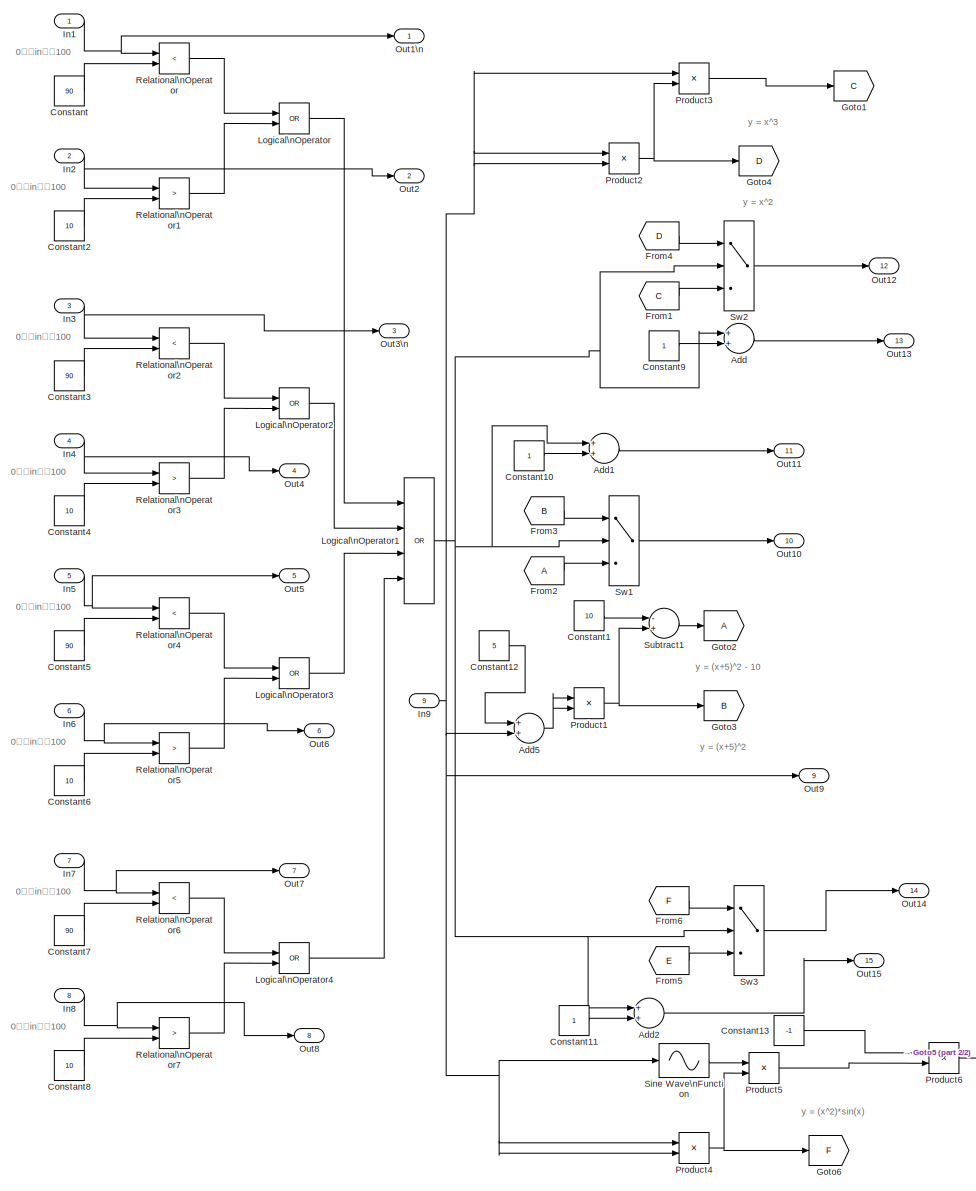
[diagram: root canvas - part 1/2, most of the canvas]
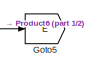
[diagram: root canvas - part 2/2, bottom right region]
MODEL toy_model_NO4
KIND model
BLOCK [Sum] Add
  InputSameDT = off
  OutDataTypeStr = Inherit: Inherit via internal rule
  Ports = [2, 1]
  SID = 97
  SaturateOnIntegerOverflow = off
BLOCK [Sum] Add1
  InputSameDT = off
  OutDataTypeStr = Inherit: Inherit via internal rule
  Ports = [2, 1]
  SID = 99
  SaturateOnIntegerOverflow = off
BLOCK [Sum] Add2
  InputSameDT = off
  OutDataTypeStr = Inherit: Inherit via internal rule
  Ports = [2, 1]
  SID = 101
  SaturateOnIntegerOverflow = off
BLOCK [Sum] Add5
  InputSameDT = off
  OutDataTypeStr = Inherit: Inherit via internal rule
  Ports = [2, 1]
  SID = 105
  SaturateOnIntegerOverflow = off
BLOCK [Constant] Constant
  SID = 10
  Value = 90
BLOCK [Constant] Constant1
  SID = 11
  Value = 10
BLOCK [Constant] Constant10
  SID = 100
BLOCK [Constant] Constant11
  SID = 102
BLOCK [Constant] Constant12
  SID = 106
  Value = 5
BLOCK [Constant] Constant13
  SID = 108
  Value = -1
BLOCK [Constant] Constant2
  SID = 12
  Value = 10
BLOCK [Constant] Constant3
  SID = 13
  Value = 90
BLOCK [Constant] Constant4
  SID = 14
  Value = 10
BLOCK [Constant] Constant5
  SID = 15
  Value = 90
BLOCK [Constant] Constant6
  SID = 16
  Value = 10
BLOCK [Constant] Constant7
  SID = 17
  Value = 90
BLOCK [Constant] Constant8
  SID = 18
  Value = 10
BLOCK [Constant] Constant9
  SID = 98
BLOCK [From] From1
  GotoTag = C
  SID = 59
BLOCK [From] From2
  SID = 19
BLOCK [From] From3
  GotoTag = B
  SID = 20
BLOCK [From] From4
  GotoTag = D
  SID = 60
BLOCK [From] From5
  GotoTag = E
  SID = 62
BLOCK [From] From6
  GotoTag = F
  SID = 63
BLOCK [Goto] Goto1
  GotoTag = C
  SID = 52
BLOCK [Goto] Goto2
  SID = 21
BLOCK [Goto] Goto3
  GotoTag = B
  SID = 22
BLOCK [Goto] Goto4
  GotoTag = D
  SID = 53
BLOCK [Goto] Goto5
  GotoTag = E
  SID = 64
BLOCK [Goto] Goto6
  GotoTag = F
  SID = 65
BLOCK [Inport] In1
  IconDisplay = Port number
  SID = 1
BLOCK [Inport] In2
  IconDisplay = Port number
  Port = 2
  SID = 2
BLOCK [Inport] In3
  IconDisplay = Port number
  Port = 3
  SID = 3
BLOCK [Inport] In4
  IconDisplay = Port number
  Port = 4
  SID = 4
BLOCK [Inport] In5
  IconDisplay = Port number
  Port = 5
  SID = 5
BLOCK [Inport] In6
  IconDisplay = Port number
  Port = 6
  SID = 6
BLOCK [Inport] In7
  IconDisplay = Port number
  Port = 7
  SID = 7
BLOCK [Inport] In8
  IconDisplay = Port number
  Port = 8
  SID = 8
BLOCK [Inport] In9
  IconDisplay = Port number
  Port = 9
  SID = 9
BLOCK [Logic] Logical\nOperator
  AllPortsSameDT = off
  Operator = OR
  OutDataTypeStr = boolean
  Ports = [2, 1]
  SID = 23
BLOCK [Logic] Logical\nOperator1
  AllPortsSameDT = off
  Inputs = 4
  Operator = OR
  OutDataTypeStr = boolean
  Ports = [4, 1]
  SID = 24
BLOCK [Logic] Logical\nOperator2
  AllPortsSameDT = off
  Operator = OR
  OutDataTypeStr = boolean
  Ports = [2, 1]
  SID = 25
BLOCK [Logic] Logical\nOperator3
  AllPortsSameDT = off
  Operator = OR
  OutDataTypeStr = boolean
  Ports = [2, 1]
  SID = 26
BLOCK [Logic] Logical\nOperator4
  AllPortsSameDT = off
  Operator = OR
  OutDataTypeStr = boolean
  Ports = [2, 1]
  SID = 27
BLOCK [Outport] Out10
  IconDisplay = Port number
  Port = 10
  SID = 103
BLOCK [Outport] Out11
  IconDisplay = Port number
  Port = 11
  SID = 93
BLOCK [Outport] Out12
  IconDisplay = Port number
  Port = 12
  SID = 94
BLOCK [Outport] Out13
  IconDisplay = Port number
  Port = 13
  SID = 95
BLOCK [Outport] Out14
  IconDisplay = Port number
  Port = 14
  SID = 96
BLOCK [Outport] Out15
  IconDisplay = Port number
  Port = 15
  SID = 104
BLOCK [Outport] Out1\n
  IconDisplay = Port number
  SID = 87
BLOCK [Outport] Out2
  IconDisplay = Port number
  Port = 2
  SID = 56
BLOCK [Outport] Out3\n
  IconDisplay = Port number
  Port = 3
  SID = 39
BLOCK [Outport] Out4
  IconDisplay = Port number
  Port = 4
  SID = 40
BLOCK [Outport] Out5
  IconDisplay = Port number
  Port = 5
  SID = 70
BLOCK [Outport] Out6
  IconDisplay = Port number
  Port = 6
  SID = 88
BLOCK [Outport] Out7
  IconDisplay = Port number
  Port = 7
  SID = 89
BLOCK [Outport] Out8
  IconDisplay = Port number
  Port = 8
  SID = 90
BLOCK [Outport] Out9
  IconDisplay = Port number
  Port = 9
  SID = 91
BLOCK [Product] Product1
  InputSameDT = off
  OutDataTypeStr = Inherit: Inherit via internal rule
  Ports = [2, 1]
  SID = 28
  SaturateOnIntegerOverflow = off
BLOCK [Product] Product2
  InputSameDT = off
  OutDataTypeStr = Inherit: Inherit via internal rule
  Ports = [2, 1]
  SID = 54
  SaturateOnIntegerOverflow = off
BLOCK [Product] Product3
  InputSameDT = off
  OutDataTypeStr = Inherit: Inherit via internal rule
  Ports = [2, 1]
  SID = 55
  SaturateOnIntegerOverflow = off
BLOCK [Product] Product4
  InputSameDT = off
  OutDataTypeStr = Inherit: Inherit via internal rule
  Ports = [2, 1]
  SID = 66
  SaturateOnIntegerOverflow = off
BLOCK [Product] Product5
  InputSameDT = off
  OutDataTypeStr = Inherit: Inherit via internal rule
  Ports = [2, 1]
  SID = 67
  SaturateOnIntegerOverflow = off
BLOCK [Product] Product6
  InputSameDT = off
  OutDataTypeStr = Inherit: Inherit via internal rule
  Ports = [2, 1]
  SID = 107
  SaturateOnIntegerOverflow = off
BLOCK [RelationalOperator] Relational\nOperator
  InputSameDT = off
  Operator = <
  OutDataTypeStr = boolean
  Ports = [2, 1]
  SID = 29
BLOCK [RelationalOperator] Relational\nOperator1
  InputSameDT = off
  Operator = >
  OutDataTypeStr = boolean
  Ports = [2, 1]
  SID = 30
BLOCK [RelationalOperator] Relational\nOperator2
  InputSameDT = off
  Operator = <
  OutDataTypeStr = boolean
  Ports = [2, 1]
  SID = 31
BLOCK [RelationalOperator] Relational\nOperator3
  InputSameDT = off
  Operator = >
  OutDataTypeStr = boolean
  Ports = [2, 1]
  SID = 32
BLOCK [RelationalOperator] Relational\nOperator4
  InputSameDT = off
  Operator = <
  OutDataTypeStr = boolean
  Ports = [2, 1]
  SID = 33
BLOCK [RelationalOperator] Relational\nOperator5
  InputSameDT = off
  Operator = >
  OutDataTypeStr = boolean
  Ports = [2, 1]
  SID = 34
BLOCK [RelationalOperator] Relational\nOperator6
  InputSameDT = off
  Operator = <
  OutDataTypeStr = boolean
  Ports = [2, 1]
  SID = 35
BLOCK [RelationalOperator] Relational\nOperator7
  InputSameDT = off
  Operator = >
  OutDataTypeStr = boolean
  Ports = [2, 1]
  SID = 36
BLOCK [Sin] Sine Wave\nFunction
  Ports = [1, 1]
  SID = 68
  SampleTime = 0
  TimeSource = Use external signal
BLOCK [Sum] Subtract1
  InputSameDT = off
  Inputs = -+
  OutDataTypeStr = Inherit: Inherit via internal rule
  Ports = [2, 1]
  SID = 37
  SaturateOnIntegerOverflow = off
BLOCK [Switch] Sw1
  RndMeth = Simplest
  SID = 38
  SaturateOnIntegerOverflow = off
  Threshold = 0.5
BLOCK [Switch] Sw2
  RndMeth = Simplest
  SID = 61
  SaturateOnIntegerOverflow = off
  Threshold = 0.5
BLOCK [Switch] Sw3
  RndMeth = Simplest
  SID = 69
  SaturateOnIntegerOverflow = off
  Threshold = 0.5
ANNOTATION (root): 0 in 100
ANNOTATION (root): y = (x+5)^2
ANNOTATION (root): y = (x+5)^2 - 10
ANNOTATION (root): y = (x^2)*sin(x)
ANNOTATION (root): y = x^2
ANNOTATION (root): y = x^3
LINE Add1:1 -> Out11:1
LINE Add2:1 -> Out15:1
NET Add5:1 -> Product1:1, Product1:2
LINE Add:1 -> Out13:1
LINE Constant10:1 -> Add1:2
LINE Constant11:1 -> Add2:2
LINE Constant12:1 -> Add5:1
LINE Constant13:1 -> Product6:1
LINE Constant1:1 -> Subtract1:1
LINE Constant2:1 -> Relational\nOperator1:2
LINE Constant3:1 -> Relational\nOperator2:2
LINE Constant4:1 -> Relational\nOperator3:2
LINE Constant5:1 -> Relational\nOperator4:2
LINE Constant6:1 -> Relational\nOperator5:2
LINE Constant7:1 -> Relational\nOperator6:2
LINE Constant8:1 -> Relational\nOperator7:2
LINE Constant9:1 -> Add:2
LINE Constant:1 -> Relational\nOperator:2
LINE From1:1 -> Sw2:3
LINE From2:1 -> Sw1:3
LINE From3:1 -> Sw1:1
LINE From4:1 -> Sw2:1
LINE From5:1 -> Sw3:3
LINE From6:1 -> Sw3:1
NET In1:1 -> Out1\n:1, Relational\nOperator:1
NET In2:1 -> Out2:1, Relational\nOperator1:1
NET In3:1 -> Out3\n:1, Relational\nOperator2:1
NET In4:1 -> Out4:1, Relational\nOperator3:1
NET In5:1 -> Out5:1, Relational\nOperator4:1
NET In6:1 -> Out6:1, Relational\nOperator5:1
NET In7:1 -> Out7:1, Relational\nOperator6:1
NET In8:1 -> Out8:1, Relational\nOperator7:1
NET In9:1 -> Add5:2, Out9:1, Product2:1, Product2:2, Product3:1, Product4:1, Product4:2, Sine Wave\nFunction:1
NET Logical\nOperator1:1 -> Add1:1, Add2:1, Add:1, Sw1:2, Sw2:2, Sw3:2
LINE Logical\nOperator2:1 -> Logical\nOperator1:2
LINE Logical\nOperator3:1 -> Logical\nOperator1:3
LINE Logical\nOperator4:1 -> Logical\nOperator1:4
LINE Logical\nOperator:1 -> Logical\nOperator1:1
NET Product1:1 -> Goto3:1, Subtract1:2
NET Product2:1 -> Goto4:1, Product3:2
LINE Product3:1 -> Goto1:1
NET Product4:1 -> Goto6:1, Product5:2
LINE Product5:1 -> Product6:2
LINE Product6:1 -> Goto5:1
LINE Relational\nOperator1:1 -> Logical\nOperator:2
LINE Relational\nOperator2:1 -> Logical\nOperator2:1
LINE Relational\nOperator3:1 -> Logical\nOperator2:2
LINE Relational\nOperator4:1 -> Logical\nOperator3:1
LINE Relational\nOperator5:1 -> Logical\nOperator3:2
LINE Relational\nOperator6:1 -> Logical\nOperator4:1
LINE Relational\nOperator7:1 -> Logical\nOperator4:2
LINE Relational\nOperator:1 -> Logical\nOperator:1
LINE Sine Wave\nFunction:1 -> Product5:1
LINE Subtract1:1 -> Goto2:1
LINE Sw1:1 -> Out10:1
LINE Sw2:1 -> Out12:1
LINE Sw3:1 -> Out14:1
note: NET lines group one-source signal fan-out (src -> all destinations, sorted); 1:1 wires keep LINE
